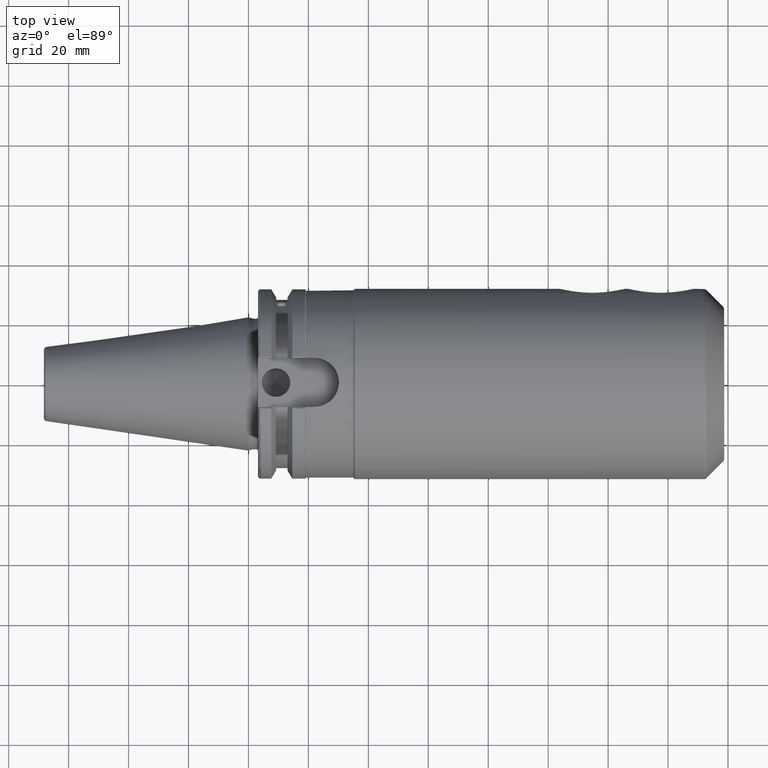
[diagram: clean part render]
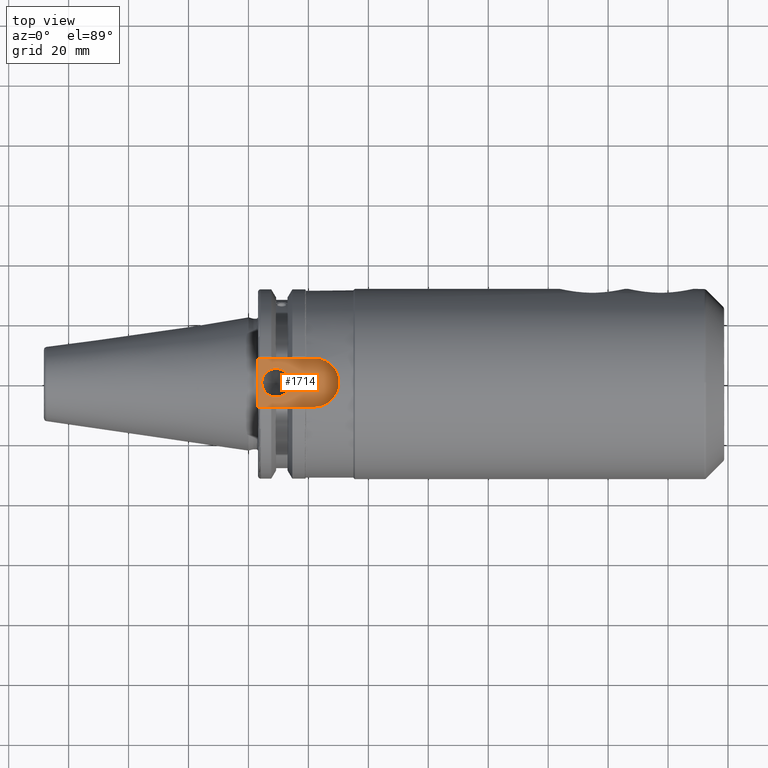
[diagram: same view with one face highlighted and labeled with its STEP entity id]
A machine part, top view. The second image highlights one B-rep face of the part: STEP entity #1714.
In plain terms, the highlighted planar face has unit normal (0, 0, 1).
Its self-contained STEP definition (entity closure, byte-faithful):
#66=FACE_BOUND('',#344,.T.);
#100=PLANE('',#1930);
#233=FACE_OUTER_BOUND('',#343,.T.);
#343=EDGE_LOOP('',(#1591,#1592,#1593,#1594));
#344=EDGE_LOOP('',(#1595));
#426=CIRCLE('',#1786,8.19);
#475=CIRCLE('',#1915,4.7625);
#537=LINE('',#3258,#627);
#561=LINE('',#3456,#651);
#562=LINE('',#3458,#652);
#627=VECTOR('',#2254,10.);
#651=VECTOR('',#2338,10.);
#652=VECTOR('',#2341,10.);
#712=VERTEX_POINT('',#2774);
#713=VERTEX_POINT('',#2776);
#794=VERTEX_POINT('',#3255);
#795=VERTEX_POINT('',#3257);
#833=VERTEX_POINT('',#3490);
#899=EDGE_CURVE('',#713,#712,#426,.T.);
#1013=EDGE_CURVE('',#794,#795,#537,.T.);
#1067=EDGE_CURVE('',#794,#713,#561,.T.);
#1068=EDGE_CURVE('',#712,#795,#562,.T.);
#1081=EDGE_CURVE('',#833,#833,#475,.T.);
#1591=ORIENTED_EDGE('',*,*,#1013,.F.);
#1592=ORIENTED_EDGE('',*,*,#1067,.T.);
#1593=ORIENTED_EDGE('',*,*,#899,.T.);
#1594=ORIENTED_EDGE('',*,*,#1068,.T.);
#1595=ORIENTED_EDGE('',*,*,#1081,.T.);
#1714=ADVANCED_FACE('',(#233,#66),#100,.T.);
#1786=AXIS2_PLACEMENT_3D('',#2777,#2044,#2045);
#1915=AXIS2_PLACEMENT_3D('',#3491,#2371,#2372);
#1930=AXIS2_PLACEMENT_3D('',#3507,#2402,#2403);
#2044=DIRECTION('center_axis',(0.,0.,1.));
#2045=DIRECTION('ref_axis',(1.08446693492079E-15,-1.,0.));
#2254=DIRECTION('',(0.,1.,0.));
#2338=DIRECTION('',(1.,3.54138125877243E-16,0.));
#2341=DIRECTION('',(-1.,0.,0.));
#2371=DIRECTION('center_axis',(0.,0.,-1.));
#2372=DIRECTION('ref_axis',(1.,0.,0.));
#2402=DIRECTION('center_axis',(0.,0.,1.));
#2403=DIRECTION('ref_axis',(1.,0.,0.));
#2774=CARTESIAN_POINT('',(21.985,8.18999999999999,25.));
#2776=CARTESIAN_POINT('',(21.985,-8.19,25.));
#2777=CARTESIAN_POINT('Origin',(21.985,3.80260901255061E-15,25.));
#3255=CARTESIAN_POINT('',(3.175,-8.19000000000001,25.));
#3257=CARTESIAN_POINT('',(3.175,8.18999999999999,25.));
#3258=CARTESIAN_POINT('',(3.175,15.875,25.));
#3456=CARTESIAN_POINT('',(3.175,-8.19000000000001,25.));
#3458=CARTESIAN_POINT('',(21.985,8.18999999999999,25.));
#3490=CARTESIAN_POINT('',(4.4125,-5.83238038093927E-16,25.));
#3491=CARTESIAN_POINT('Origin',(9.175,0.,25.));
#3507=CARTESIAN_POINT('Origin',(15.7075,0.,25.));